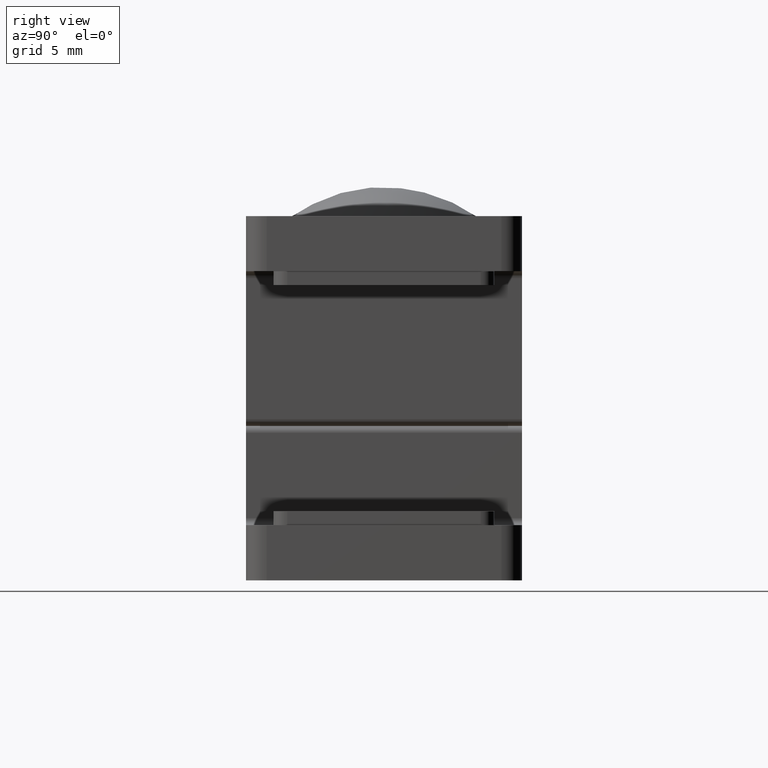
[diagram: clean part render]
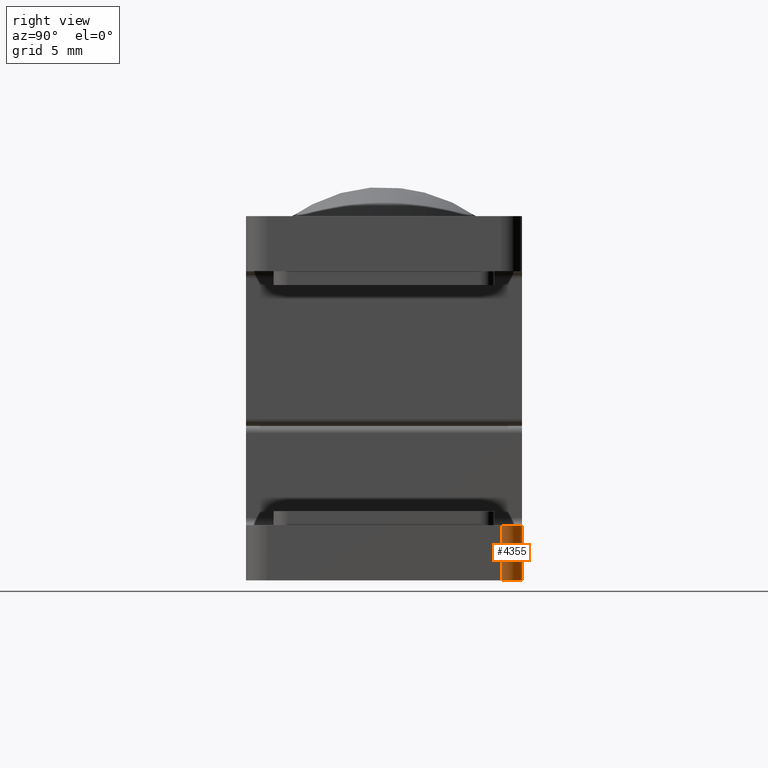
[diagram: same view with one face highlighted and labeled with its STEP entity id]
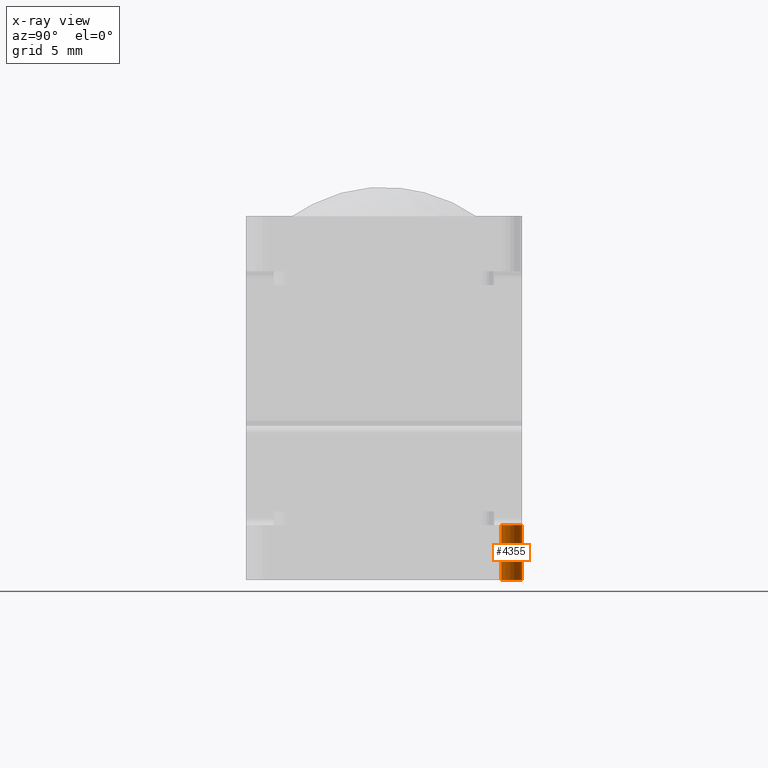
[diagram: x-ray of the same camera — body ghosted, the highlighted face saturated]
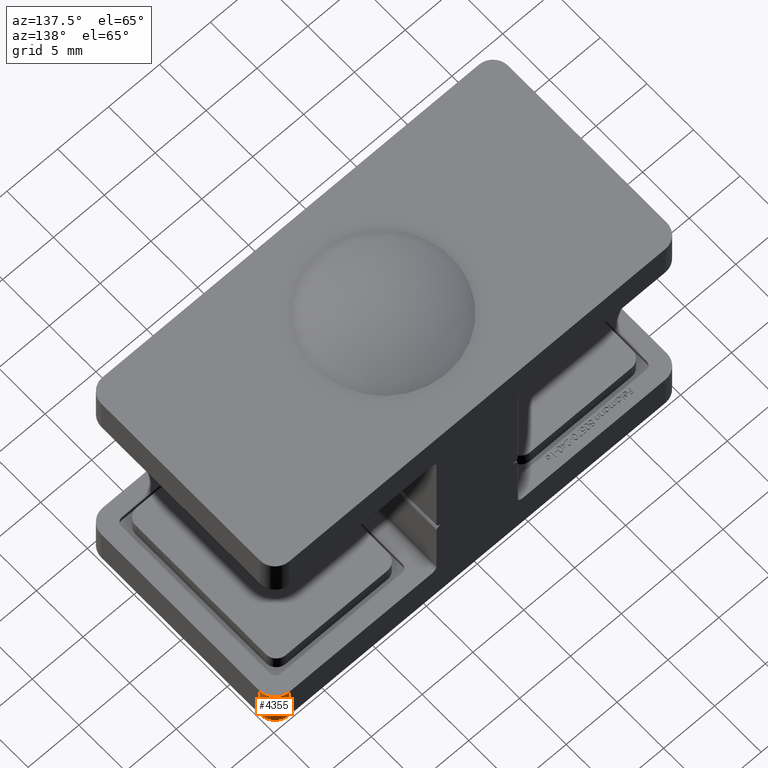
[diagram: same view with one face highlighted and labeled with its STEP entity id]
A machine part, right view. The second image highlights one B-rep face of the part: STEP entity #4355.
The next image is the same camera in x-ray: the body ghosted, the highlighted face saturated — about 0% of this face is hidden behind the body in this view.
A second angle (auxiliary view) of the same face is appended — the face is thin or edge-on in the first view.
In plain terms, the highlighted cylindrical surface (edge-blend (fillet) strip) has radius 1.5 mm, axis along (0, 0, -1).
Its self-contained STEP definition (entity closure, byte-faithful):
#154 = DIRECTION ( 'NONE',  ( 0.000000000000000000, -0.000000000000000000, -1.000000000000000000 ) ) ;
#2809 = EDGE_CURVE ( 'NONE', #19187, #26274, #17055, .T. ) ;
#3840 = ORIENTED_EDGE ( 'NONE', *, *, #15273, .F. ) ;
#4355 = ADVANCED_FACE ( 'NONE', ( #22967 ), #5594, .T. ) ;
#4407 = CARTESIAN_POINT ( 'NONE',  ( 20.00000000000000711, 8.499999999999998224, 0.000000000000000000 ) ) ;
#5523 = DIRECTION ( 'NONE',  ( -0.000000000000000000, -0.000000000000000000, 1.000000000000000000 ) ) ;
#5594 = CYLINDRICAL_SURFACE ( 'NONE', #8859, 1.500000000000001332 ) ;
#5818 = CARTESIAN_POINT ( 'NONE',  ( 18.50000000000000711, 8.499999999999998224, 4.000000000000000000 ) ) ;
#8076 = DIRECTION ( 'NONE',  ( 0.000000000000000000, 0.000000000000000000, -1.000000000000000000 ) ) ;
#8859 = AXIS2_PLACEMENT_3D ( 'NONE', #5818, #8076, #16461 ) ;
#9291 = LINE ( 'NONE', #21503, #10143 ) ;
#10143 = VECTOR ( 'NONE', #5523, 1000.000000000000000 ) ;
#12897 = VERTEX_POINT ( 'NONE', #23954 ) ;
#13030 = ORIENTED_EDGE ( 'NONE', *, *, #13563, .F. ) ;
#13563 = EDGE_CURVE ( 'NONE', #26274, #17239, #9291, .T. ) ;
#15273 = EDGE_CURVE ( 'NONE', #17239, #12897, #17254, .T. ) ;
#15896 = ORIENTED_EDGE ( 'NONE', *, *, #2809, .F. ) ;
#16461 = DIRECTION ( 'NONE',  ( -1.000000000000000000, 0.000000000000000000, 0.000000000000000000 ) ) ;
#17055 = CIRCLE ( 'NONE', #22173, 1.500000000000001332 ) ;
#17239 = VERTEX_POINT ( 'NONE', #24687 ) ;
#17254 = CIRCLE ( 'NONE', #28833, 1.500000000000001332 ) ;
#17457 = EDGE_LOOP ( 'NONE', ( #3840, #13030, #15896, #26025 ) ) ;
#19118 = CARTESIAN_POINT ( 'NONE',  ( 18.50000000000000711, 8.499999999999998224, 4.000000000000000000 ) ) ;
#19187 = VERTEX_POINT ( 'NONE', #33303 ) ;
#21503 = CARTESIAN_POINT ( 'NONE',  ( 20.00000000000000711, 8.499999999999998224, 4.000000000000000000 ) ) ;
#21689 = CARTESIAN_POINT ( 'NONE',  ( 18.50000000000000711, 8.499999999999998224, 0.000000000000000000 ) ) ;
#22173 = AXIS2_PLACEMENT_3D ( 'NONE', #21689, #154, #24677 ) ;
#22209 = DIRECTION ( 'NONE',  ( -0.000000000000000000, 0.000000000000000000, 1.000000000000000000 ) ) ;
#22967 = FACE_OUTER_BOUND ( 'NONE', #17457, .T. ) ;
#23954 = CARTESIAN_POINT ( 'NONE',  ( 18.50000000000000711, 9.999999999999998224, 4.000000000000000000 ) ) ;
#24677 = DIRECTION ( 'NONE',  ( 1.000000000000000000, 0.000000000000000000, 0.000000000000000000 ) ) ;
#24687 = CARTESIAN_POINT ( 'NONE',  ( 20.00000000000000711, 8.499999999999998224, 4.000000000000000000 ) ) ;
#26025 = ORIENTED_EDGE ( 'NONE', *, *, #27034, .F. ) ;
#26274 = VERTEX_POINT ( 'NONE', #4407 ) ;
#27034 = EDGE_CURVE ( 'NONE', #12897, #19187, #33056, .T. ) ;
#28833 = AXIS2_PLACEMENT_3D ( 'NONE', #19118, #22209, #32933 ) ;
#30683 = CARTESIAN_POINT ( 'NONE',  ( 18.50000000000000711, 9.999999999999998224, 4.000000000000000000 ) ) ;
#32933 = DIRECTION ( 'NONE',  ( 1.000000000000000000, 0.000000000000000000, 0.000000000000000000 ) ) ;
#33056 = LINE ( 'NONE', #30683, #34741 ) ;
#33303 = CARTESIAN_POINT ( 'NONE',  ( 18.50000000000000711, 9.999999999999998224, 0.000000000000000000 ) ) ;
#33391 = DIRECTION ( 'NONE',  ( 0.000000000000000000, 0.000000000000000000, -1.000000000000000000 ) ) ;
#34741 = VECTOR ( 'NONE', #33391, 1000.000000000000000 ) ;